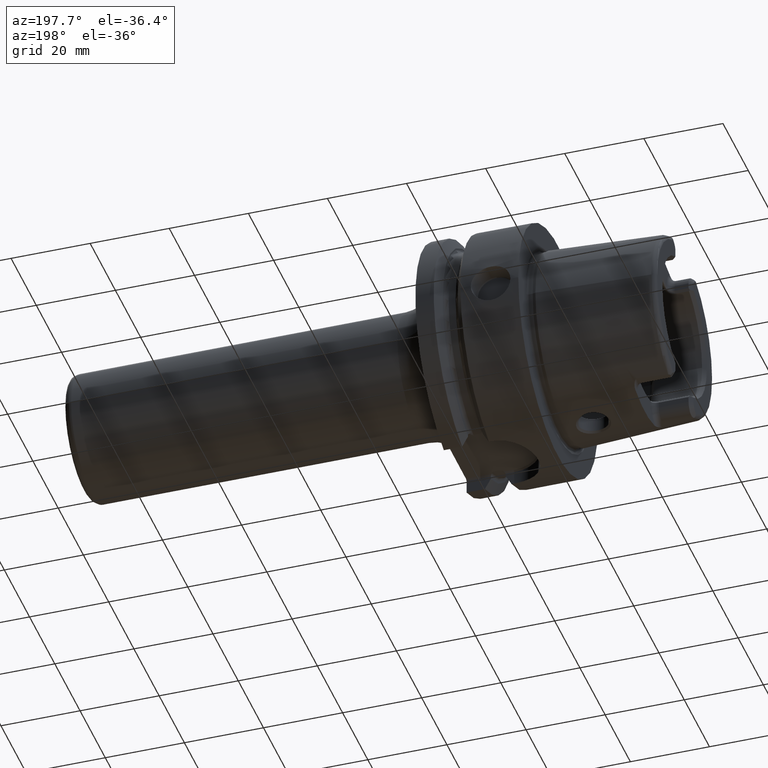
[diagram: clean part render]
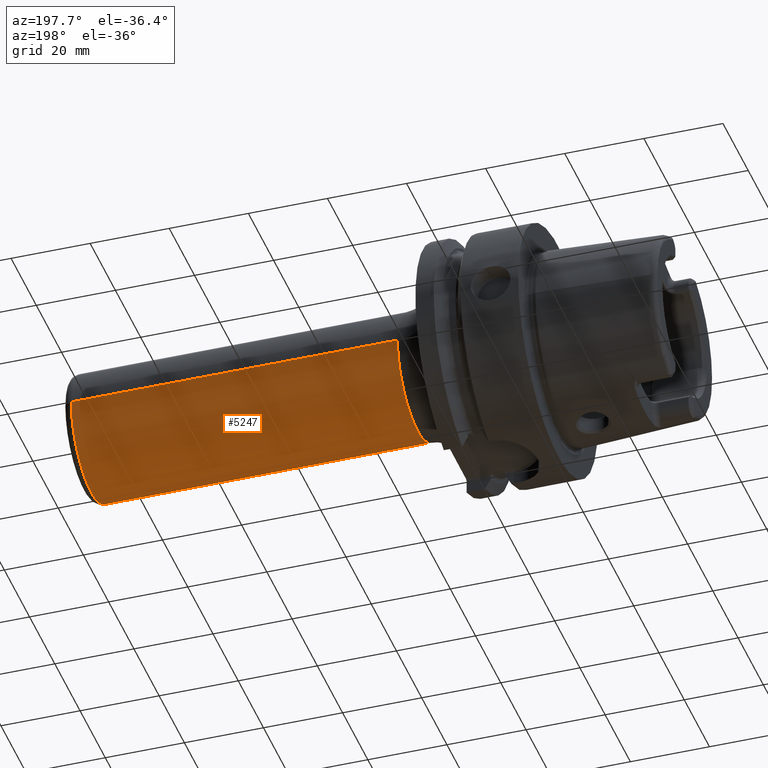
[diagram: same view with one face highlighted and labeled with its STEP entity id]
A machine part, auxiliary view. The second image highlights one B-rep face of the part: STEP entity #5247.
In plain terms, the highlighted cylindrical surface (partial cylindrical patch) has radius 16 mm, axis along (1, 0, 0).
Its self-contained STEP definition (entity closure, byte-faithful):
#1986=CARTESIAN_POINT('',(1.18E2,0.E0,0.E0));
#1987=DIRECTION('',(-1.E0,0.E0,0.E0));
#1988=DIRECTION('',(0.E0,1.E0,0.E0));
#1989=AXIS2_PLACEMENT_3D('',#1986,#1987,#1988);
#1991=DIRECTION('',(-1.E0,0.E0,0.E0));
#1992=VECTOR('',#1991,8.25E1);
#1993=CARTESIAN_POINT('',(1.18E2,1.6E1,-2.609808746679E-13));
#1994=LINE('',#1993,#1992);
#1995=CARTESIAN_POINT('',(3.55E1,0.E0,0.E0));
#1996=DIRECTION('',(1.E0,0.E0,0.E0));
#1997=DIRECTION('',(0.E0,-1.E0,0.E0));
#1998=AXIS2_PLACEMENT_3D('',#1995,#1996,#1997);
#2000=DIRECTION('',(-1.E0,0.E0,0.E0));
#2001=VECTOR('',#2000,8.25E1);
#2002=CARTESIAN_POINT('',(1.18E2,-1.6E1,2.604852188037E-13));
#2003=LINE('',#2002,#2001);
#3056=CARTESIAN_POINT('',(1.18E2,1.6E1,0.E0));
#3057=CARTESIAN_POINT('',(1.18E2,-1.6E1,0.E0));
#3058=VERTEX_POINT('',#3056);
#3059=VERTEX_POINT('',#3057);
#3068=CARTESIAN_POINT('',(3.55E1,-1.6E1,0.E0));
#3069=CARTESIAN_POINT('',(3.55E1,1.6E1,0.E0));
#3070=VERTEX_POINT('',#3068);
#3071=VERTEX_POINT('',#3069);
#5236=CARTESIAN_POINT('',(2.13E1,0.E0,0.E0));
#5237=DIRECTION('',(1.E0,0.E0,0.E0));
#5238=DIRECTION('',(0.E0,-1.E0,0.E0));
#5239=AXIS2_PLACEMENT_3D('',#5236,#5237,#5238);
#5240=CYLINDRICAL_SURFACE('',#5239,1.6E1);
#5241=ORIENTED_EDGE('',*,*,#5227,.F.);
#5242=ORIENTED_EDGE('',*,*,#5202,.T.);
#5243=ORIENTED_EDGE('',*,*,#5172,.F.);
#5244=ORIENTED_EDGE('',*,*,#5199,.F.);
#5245=EDGE_LOOP('',(#5241,#5242,#5243,#5244));
#5246=FACE_OUTER_BOUND('',#5245,.F.);
#5247=ADVANCED_FACE('',(#5246),#5240,.T.);
#1990=CIRCLE('',#1989,1.6E1);
#1999=CIRCLE('',#1998,1.6E1);
#5172=EDGE_CURVE('',#3070,#3071,#1999,.T.);
#5199=EDGE_CURVE('',#3059,#3070,#2003,.T.);
#5202=EDGE_CURVE('',#3058,#3071,#1994,.T.);
#5227=EDGE_CURVE('',#3058,#3059,#1990,.T.);